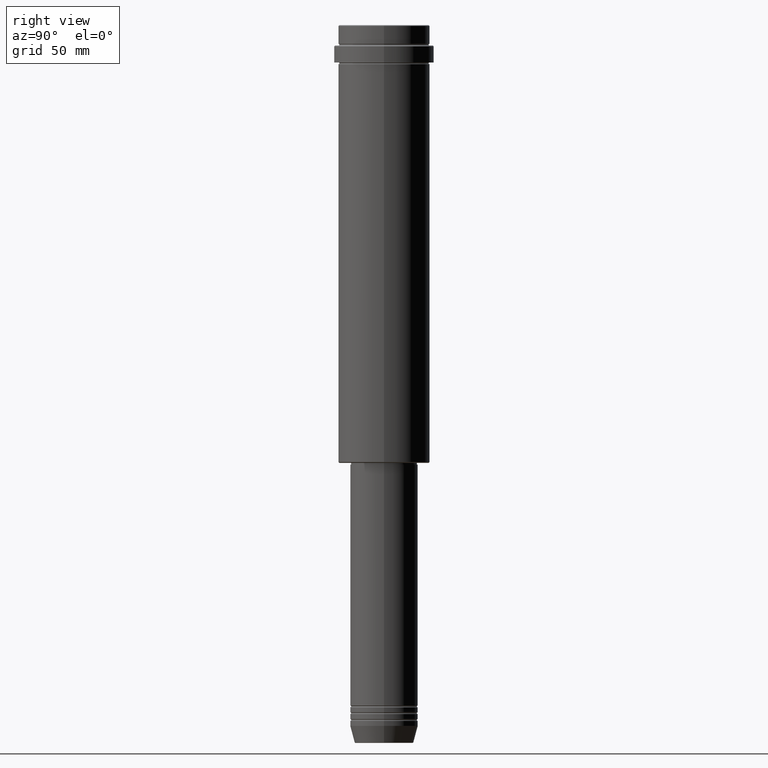
[diagram: clean part render]
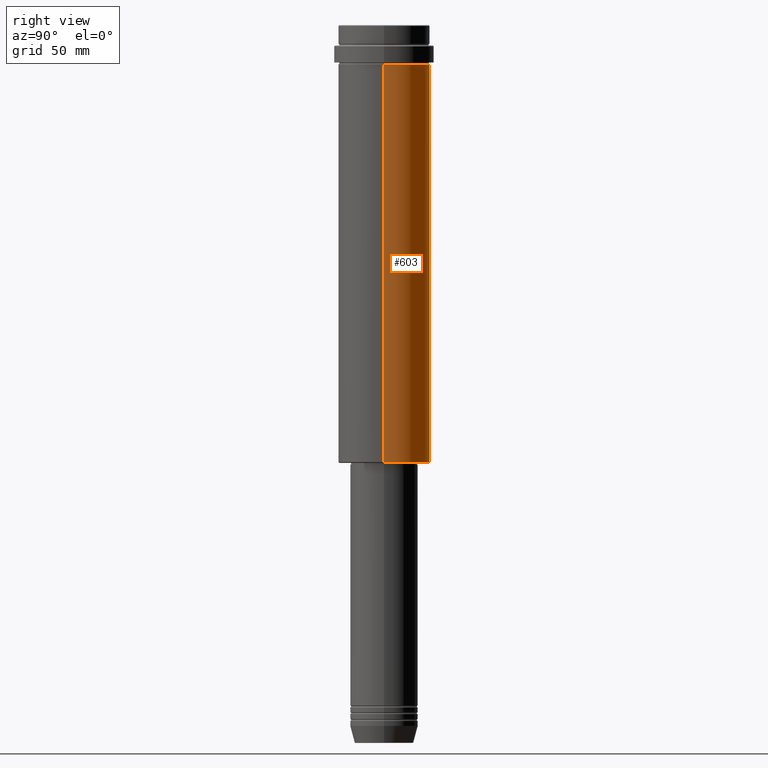
[diagram: same view with one face highlighted and labeled with its STEP entity id]
A machine part, right view. The second image highlights one B-rep face of the part: STEP entity #603.
In plain terms, the highlighted cylindrical surface (partial cylindrical patch) has radius 27 mm, axis along (-0, -0, 1).
Its self-contained STEP definition (entity closure, byte-faithful):
#21 = DIRECTION ( 'NONE',  ( 1.000000000000000000, 0.000000000000000000, 0.000000000000000000 ) ) ;
#149 = VECTOR ( 'NONE', #922, 1000.000000000000000 ) ;
#158 = CARTESIAN_POINT ( 'NONE',  ( 0.000000000000000000, 0.000000000000000000, -257.5000000000000568 ) ) ;
#181 = DIRECTION ( 'NONE',  ( -0.000000000000000000, -0.000000000000000000, 1.000000000000000000 ) ) ;
#190 = CARTESIAN_POINT ( 'NONE',  ( 27.00000000000000355, 0.000000000000000000, -23.00000000000001421 ) ) ;
#196 = CARTESIAN_POINT ( 'NONE',  ( 27.00000000000000355, 0.000000000000000000, 0.000000000000000000 ) ) ;
#248 = CIRCLE ( 'NONE', #1037, 27.00000000000000355 ) ;
#255 = FACE_OUTER_BOUND ( 'NONE', #487, .T. ) ;
#262 = DIRECTION ( 'NONE',  ( -1.000000000000000000, 0.000000000000000000, 0.000000000000000000 ) ) ;
#310 = EDGE_CURVE ( 'NONE', #873, #917, #375, .T. ) ;
#338 = CYLINDRICAL_SURFACE ( 'NONE', #1410, 27.00000000000000355 ) ;
#375 = CIRCLE ( 'NONE', #1361, 27.00000000000000355 ) ;
#381 = VECTOR ( 'NONE', #1181, 1000.000000000000000 ) ;
#487 = EDGE_LOOP ( 'NONE', ( #982, #647, #842, #1354 ) ) ;
#490 = CARTESIAN_POINT ( 'NONE',  ( -27.00000000000000355, 3.306546357697854128E-15, 0.000000000000000000 ) ) ;
#568 = DIRECTION ( 'NONE',  ( -0.000000000000000000, -0.000000000000000000, 1.000000000000000000 ) ) ;
#603 = ADVANCED_FACE ( 'NONE', ( #255 ), #338, .T. ) ;
#647 = ORIENTED_EDGE ( 'NONE', *, *, #727, .T. ) ;
#698 = CARTESIAN_POINT ( 'NONE',  ( 0.000000000000000000, 0.000000000000000000, -23.00000000000001421 ) ) ;
#724 = VERTEX_POINT ( 'NONE', #1264 ) ;
#727 = EDGE_CURVE ( 'NONE', #724, #917, #811, .T. ) ;
#791 = VERTEX_POINT ( 'NONE', #1373 ) ;
#811 = LINE ( 'NONE', #490, #149 ) ;
#842 = ORIENTED_EDGE ( 'NONE', *, *, #310, .F. ) ;
#873 = VERTEX_POINT ( 'NONE', #190 ) ;
#917 = VERTEX_POINT ( 'NONE', #1069 ) ;
#922 = DIRECTION ( 'NONE',  ( -0.000000000000000000, -0.000000000000000000, 1.000000000000000000 ) ) ;
#930 = DIRECTION ( 'NONE',  ( 1.000000000000000000, 0.000000000000000000, 0.000000000000000000 ) ) ;
#982 = ORIENTED_EDGE ( 'NONE', *, *, #1168, .T. ) ;
#1025 = DIRECTION ( 'NONE',  ( -0.000000000000000000, -0.000000000000000000, 1.000000000000000000 ) ) ;
#1037 = AXIS2_PLACEMENT_3D ( 'NONE', #158, #1025, #262 ) ;
#1069 = CARTESIAN_POINT ( 'NONE',  ( -27.00000000000000355, 3.306546357697854128E-15, -23.00000000000001421 ) ) ;
#1168 = EDGE_CURVE ( 'NONE', #791, #724, #248, .T. ) ;
#1173 = LINE ( 'NONE', #196, #381 ) ;
#1181 = DIRECTION ( 'NONE',  ( -0.000000000000000000, -0.000000000000000000, 1.000000000000000000 ) ) ;
#1264 = CARTESIAN_POINT ( 'NONE',  ( -27.00000000000000355, 3.306546357697854128E-15, -257.5000000000000568 ) ) ;
#1333 = CARTESIAN_POINT ( 'NONE',  ( 0.000000000000000000, 0.000000000000000000, 0.000000000000000000 ) ) ;
#1354 = ORIENTED_EDGE ( 'NONE', *, *, #1369, .F. ) ;
#1361 = AXIS2_PLACEMENT_3D ( 'NONE', #698, #181, #930 ) ;
#1369 = EDGE_CURVE ( 'NONE', #791, #873, #1173, .T. ) ;
#1373 = CARTESIAN_POINT ( 'NONE',  ( 27.00000000000000355, 0.000000000000000000, -257.5000000000000568 ) ) ;
#1410 = AXIS2_PLACEMENT_3D ( 'NONE', #1333, #568, #21 ) ;